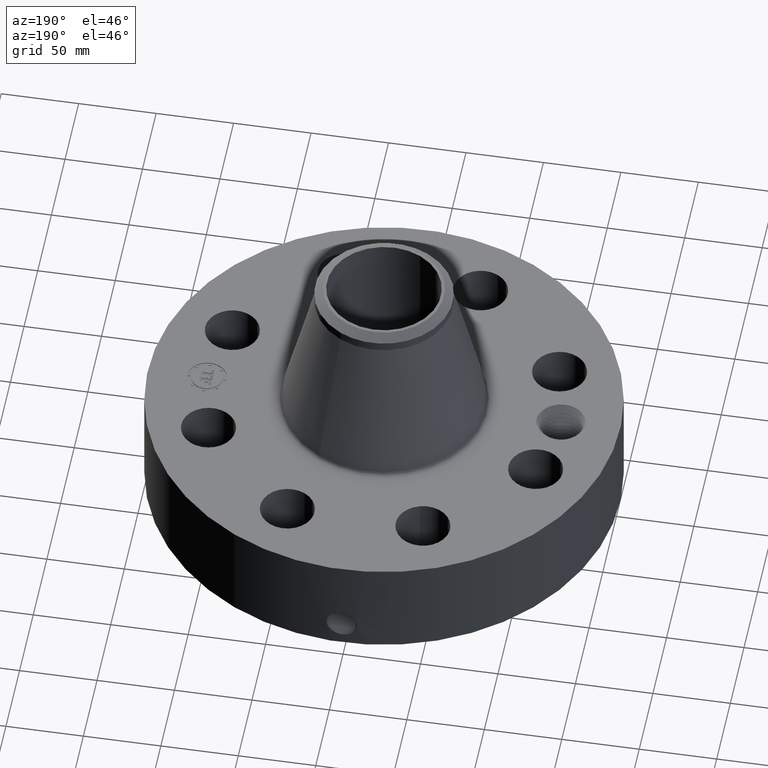
[diagram: clean part render]
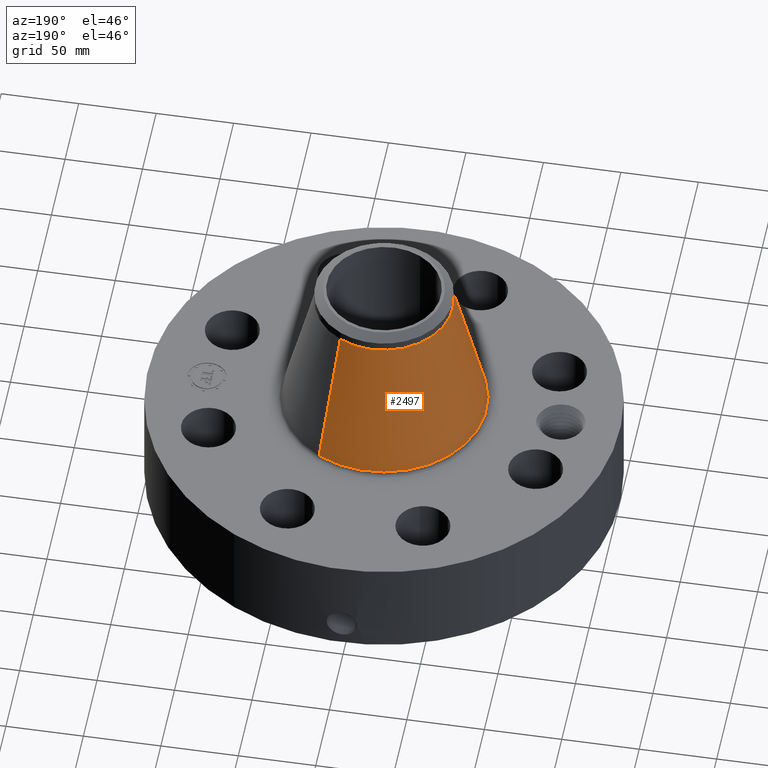
[diagram: same view with one face highlighted and labeled with its STEP entity id]
A machine part, auxiliary view. The second image highlights one B-rep face of the part: STEP entity #2497.
In plain terms, the highlighted conical surface has half-angle 13.683 deg.
Its self-contained STEP definition (entity closure, byte-faithful):
#1820=AXIS2_PLACEMENT_3D('Circle Axis2P3D',#1818,#1819,$) ;
#2458=AXIS2_PLACEMENT_3D('Cone Axis2P3D',#2455,#2456,#2457) ;
#2488=AXIS2_PLACEMENT_3D('Circle Axis2P3D',#2486,#2487,$) ;
#1796=CARTESIAN_POINT('Vertex',(1.24779873299,2.28408025991,2.96161381106)) ;
#1803=CARTESIAN_POINT('Vertex',(-1.24779873299,-2.28408025991,2.96161381106)) ;
#1818=CARTESIAN_POINT('Axis2P3D Location',(0.,0.,2.96161381106)) ;
#2455=CARTESIAN_POINT('Axis2P3D Location',(0.,0.,6.46400087906)) ;
#2460=CARTESIAN_POINT('Line Origine',(1.04339671278,1.90992487161,4.71280734506)) ;
#2464=CARTESIAN_POINT('Vertex',(0.838994692561,1.53576948331,6.46400087906)) ;
#2471=CARTESIAN_POINT('Vertex',(-0.838994692561,-1.53576948331,6.46400087906)) ;
#2474=CARTESIAN_POINT('Line Origine',(-1.04339671278,-1.90992487161,4.71280734506)) ;
#2486=CARTESIAN_POINT('Axis2P3D Location',(0.,0.,6.46400087906)) ;
#1819=DIRECTION('Axis2P3D Direction',(0.,0.,-0.0393700787402)) ;
#2456=DIRECTION('Axis2P3D Direction',(0.,0.,-0.0393700787402)) ;
#2457=DIRECTION('Axis2P3D XDirection',(-0.0188750212049,-0.0345504945626,0.)) ;
#2461=DIRECTION('Vector Direction',(0.00446491598683,0.00817297389236,-0.0382527139298)) ;
#2475=DIRECTION('Vector Direction',(-0.00446491598683,-0.00817297389236,-0.0382527139298)) ;
#2487=DIRECTION('Axis2P3D Direction',(0.,0.,-0.0393700787402)) ;
#2462=VECTOR('Line Direction',#2461,0.0393700787402) ;
#2476=VECTOR('Line Direction',#2475,0.0393700787402) ;
#2492=ORIENTED_EDGE('',*,*,#1822,.F.) ;
#2493=ORIENTED_EDGE('',*,*,#2478,.T.) ;
#2494=ORIENTED_EDGE('',*,*,#2490,.T.) ;
#2495=ORIENTED_EDGE('',*,*,#2466,.F.) ;
#2497=ADVANCED_FACE('PartBody',(#2496),#2459,.T.) ;
#1821=CIRCLE('generated circle',#1820,2.60269558569) ;
#2489=CIRCLE('generated circle',#2488,1.75000000001) ;
#2459=CONICAL_SURFACE('Cone',#2458,1.75000000001,0.238815154699) ;
#1822=EDGE_CURVE('',#1804,#1797,#1821,.T.) ;
#2466=EDGE_CURVE('',#1797,#2465,#2463,.F.) ;
#2478=EDGE_CURVE('',#1804,#2472,#2477,.F.) ;
#2490=EDGE_CURVE('',#2472,#2465,#2489,.T.) ;
#2491=EDGE_LOOP('',(#2492,#2493,#2494,#2495)) ;
#2496=FACE_OUTER_BOUND('',#2491,.T.) ;
#2463=LINE('Line',#2460,#2462) ;
#2477=LINE('Line',#2474,#2476) ;
#1797=VERTEX_POINT('',#1796) ;
#1804=VERTEX_POINT('',#1803) ;
#2465=VERTEX_POINT('',#2464) ;
#2472=VERTEX_POINT('',#2471) ;